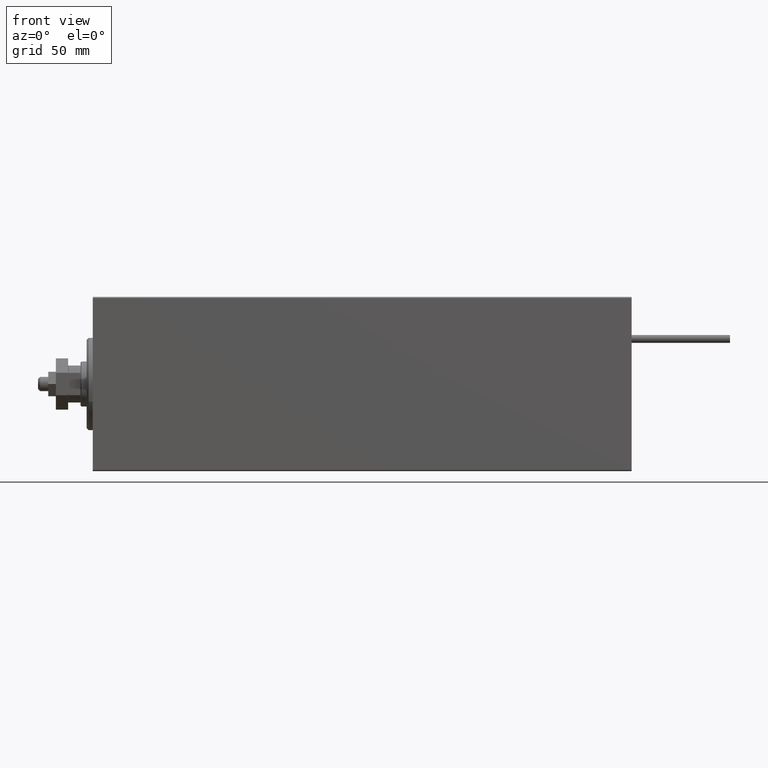
[diagram: clean part render]
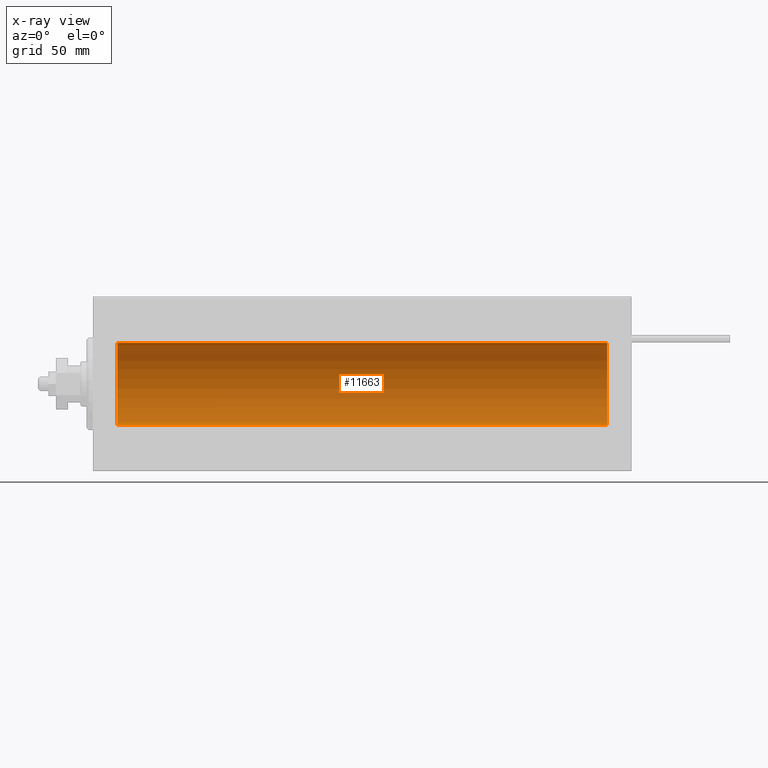
[diagram: x-ray — body ghosted, one internal face saturated and labeled with its STEP entity id]
A machine part, front view, then the same camera in x-ray: the body is ghosted and one INTERNAL B-rep face — a face not visible from any outside direction — is saturated and labeled: STEP entity #11663.
In plain terms, the highlighted cylindrical surface (partial cylindrical patch) has radius 20 mm, axis along (-1, -0, -0).
Its self-contained STEP definition (entity closure, byte-faithful):
#1215 = DIRECTION ( 'NONE',  ( -1.000000000000000000, 0.000000000000000000, 0.000000000000000000 ) ) ;
#1464 = ORIENTED_EDGE ( 'NONE', *, *, #49042, .F. ) ;
#1674 = DIRECTION ( 'NONE',  ( 0.000000000000000000, 0.000000000000000000, 1.000000000000000000 ) ) ;
#2062 = ORIENTED_EDGE ( 'NONE', *, *, #17648, .T. ) ;
#3562 = DIRECTION ( 'NONE',  ( 0.000000000000000000, 0.000000000000000000, 1.000000000000000000 ) ) ;
#6826 = CARTESIAN_POINT ( 'NONE',  ( 251.0000000000000000, 0.000000000000000000, 20.00000000000000000 ) ) ;
#8116 = CYLINDRICAL_SURFACE ( 'NONE', #33972, 20.00000000000000000 ) ;
#11663 = ADVANCED_FACE ( 'NONE', ( #15950 ), #8116, .F. ) ;
#12923 = AXIS2_PLACEMENT_3D ( 'NONE', #48306, #1215, #33111 ) ;
#15950 = FACE_OUTER_BOUND ( 'NONE', #46646, .T. ) ;
#17648 = EDGE_CURVE ( 'NONE', #44539, #27550, #42247, .T. ) ;
#17860 = ORIENTED_EDGE ( 'NONE', *, *, #29595, .T. ) ;
#18441 = DIRECTION ( 'NONE',  ( -1.000000000000000000, -0.000000000000000000, -0.000000000000000000 ) ) ;
#20324 = VECTOR ( 'NONE', #18441, 1000.000000000000000 ) ;
#21159 = CARTESIAN_POINT ( 'NONE',  ( 251.0000000000000000, 0.000000000000000000, 0.000000000000000000 ) ) ;
#21793 = CIRCLE ( 'NONE', #12923, 20.00000000000000000 ) ;
#21874 = ORIENTED_EDGE ( 'NONE', *, *, #41058, .F. ) ;
#24994 = CARTESIAN_POINT ( 'NONE',  ( 251.0000000000000000, 2.449293598294706513E-15, -20.00000000000000000 ) ) ;
#26209 = CIRCLE ( 'NONE', #47256, 20.00000000000000000 ) ;
#26349 = CARTESIAN_POINT ( 'NONE',  ( 251.0000000000000000, 0.000000000000000000, 0.000000000000000000 ) ) ;
#27550 = VERTEX_POINT ( 'NONE', #39684 ) ;
#29595 = EDGE_CURVE ( 'NONE', #27550, #46360, #21793, .T. ) ;
#32828 = DIRECTION ( 'NONE',  ( -1.000000000000000000, 0.000000000000000000, 0.000000000000000000 ) ) ;
#33111 = DIRECTION ( 'NONE',  ( 0.000000000000000000, 0.000000000000000000, 1.000000000000000000 ) ) ;
#33972 = AXIS2_PLACEMENT_3D ( 'NONE', #26349, #34221, #3562 ) ;
#33974 = CARTESIAN_POINT ( 'NONE',  ( 12.00000000000001066, 2.449293598294706513E-15, -20.00000000000000000 ) ) ;
#34221 = DIRECTION ( 'NONE',  ( -1.000000000000000000, -0.000000000000000000, -0.000000000000000000 ) ) ;
#35678 = LINE ( 'NONE', #24994, #41442 ) ;
#38351 = VERTEX_POINT ( 'NONE', #43727 ) ;
#39684 = CARTESIAN_POINT ( 'NONE',  ( 12.00000000000001066, 0.000000000000000000, 20.00000000000000000 ) ) ;
#41058 = EDGE_CURVE ( 'NONE', #38351, #46360, #35678, .T. ) ;
#41408 = DIRECTION ( 'NONE',  ( -1.000000000000000000, -0.000000000000000000, -0.000000000000000000 ) ) ;
#41442 = VECTOR ( 'NONE', #41408, 1000.000000000000000 ) ;
#42247 = LINE ( 'NONE', #6826, #20324 ) ;
#43727 = CARTESIAN_POINT ( 'NONE',  ( 251.0000000000000000, 2.449293598294706513E-15, -20.00000000000000000 ) ) ;
#44539 = VERTEX_POINT ( 'NONE', #45780 ) ;
#45780 = CARTESIAN_POINT ( 'NONE',  ( 251.0000000000000000, 0.000000000000000000, 20.00000000000000000 ) ) ;
#46360 = VERTEX_POINT ( 'NONE', #33974 ) ;
#46646 = EDGE_LOOP ( 'NONE', ( #21874, #1464, #2062, #17860 ) ) ;
#47256 = AXIS2_PLACEMENT_3D ( 'NONE', #21159, #32828, #1674 ) ;
#48306 = CARTESIAN_POINT ( 'NONE',  ( 12.00000000000001066, 0.000000000000000000, 0.000000000000000000 ) ) ;
#49042 = EDGE_CURVE ( 'NONE', #44539, #38351, #26209, .T. ) ;